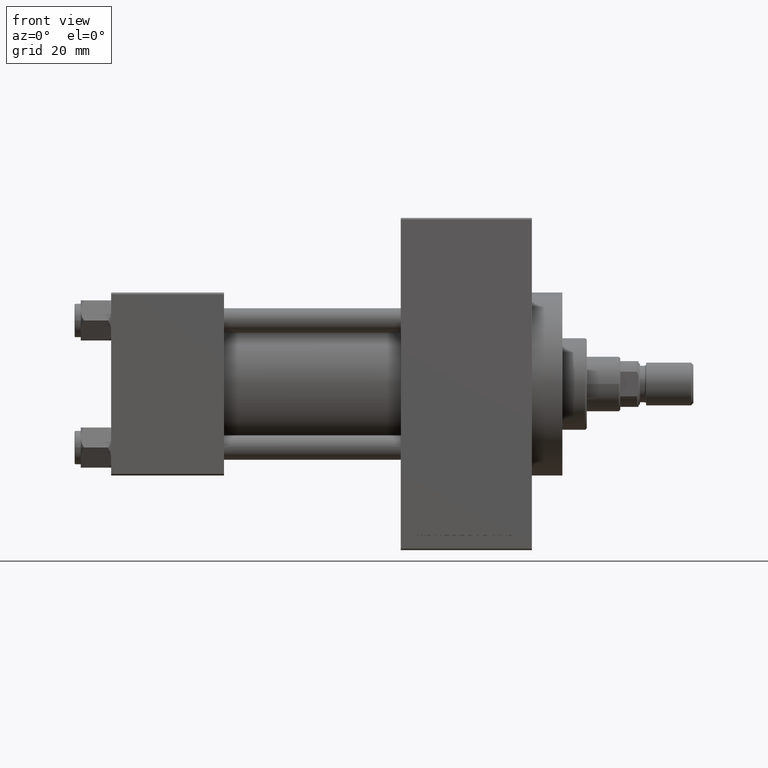
[diagram: clean part render]
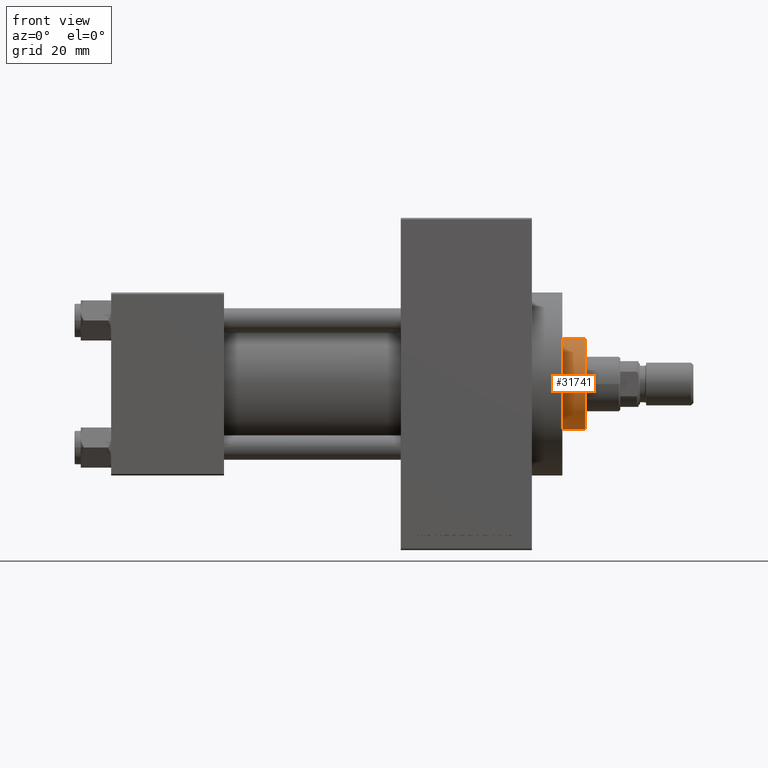
[diagram: same view with one face highlighted and labeled with its STEP entity id]
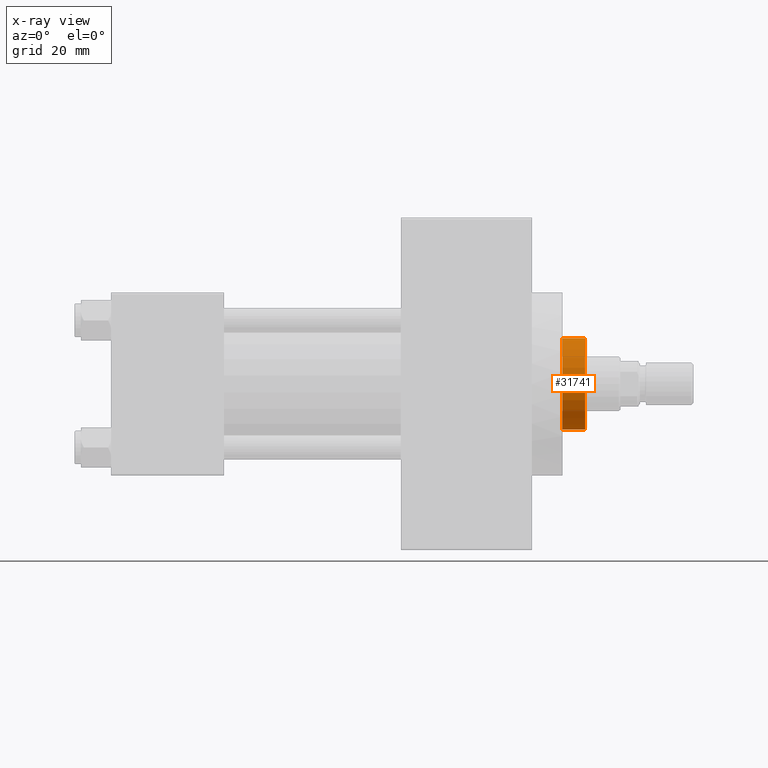
[diagram: x-ray of the same camera — body ghosted, the highlighted face saturated]
A machine part, front view. The second image highlights one B-rep face of the part: STEP entity #31741.
The next image is the same camera in x-ray: the body ghosted, the highlighted face saturated — about 0% of this face is hidden behind the body in this view.
In plain terms, the highlighted cylindrical surface (partial cylindrical patch) has radius 15 mm, axis along (-1, 0, 0).
Its self-contained STEP definition (entity closure, byte-faithful):
#370 = EDGE_CURVE ( 'NONE', #6658, #20190, #23972, .T. ) ;
#2013 = CARTESIAN_POINT ( 'NONE',  ( 0.000000000000000000, 0.000000000000000000, 51.25999999999999801 ) ) ;
#2285 = AXIS2_PLACEMENT_3D ( 'NONE', #36567, #40348, #48138 ) ;
#2746 = ORIENTED_EDGE ( 'NONE', *, *, #32170, .F. ) ;
#5696 = CARTESIAN_POINT ( 'NONE',  ( -15.00000000000000000, 0.000000000000000000, 50.75999999999998380 ) ) ;
#6658 = VERTEX_POINT ( 'NONE', #32422 ) ;
#7587 = DIRECTION ( 'NONE',  ( 0.000000000000000000, 0.000000000000000000, -1.000000000000000000 ) ) ;
#7822 = VECTOR ( 'NONE', #27873, 1000.000000000000000 ) ;
#9663 = CARTESIAN_POINT ( 'NONE',  ( -15.00000000000000000, 0.000000000000000000, 43.25999999999999801 ) ) ;
#11856 = AXIS2_PLACEMENT_3D ( 'NONE', #2013, #13323, #16866 ) ;
#13323 = DIRECTION ( 'NONE',  ( -0.000000000000000000, -0.000000000000000000, -1.000000000000000000 ) ) ;
#14870 = CARTESIAN_POINT ( 'NONE',  ( 0.000000000000000000, 0.000000000000000000, 50.75999999999998380 ) ) ;
#16866 = DIRECTION ( 'NONE',  ( -1.000000000000000000, 0.000000000000000000, 0.000000000000000000 ) ) ;
#16868 = ORIENTED_EDGE ( 'NONE', *, *, #370, .T. ) ;
#20190 = VERTEX_POINT ( 'NONE', #9663 ) ;
#20438 = ORIENTED_EDGE ( 'NONE', *, *, #42402, .T. ) ;
#23088 = VERTEX_POINT ( 'NONE', #44687 ) ;
#23972 = CIRCLE ( 'NONE', #2285, 15.00000000000000000 ) ;
#26431 = DIRECTION ( 'NONE',  ( 1.000000000000000000, 0.000000000000000000, 0.000000000000000000 ) ) ;
#27873 = DIRECTION ( 'NONE',  ( -0.000000000000000000, -0.000000000000000000, -1.000000000000000000 ) ) ;
#30081 = EDGE_CURVE ( 'NONE', #23088, #6658, #43517, .T. ) ;
#30509 = VERTEX_POINT ( 'NONE', #5696 ) ;
#31419 = CARTESIAN_POINT ( 'NONE',  ( 15.00000000000000000, 1.836970198721029589E-15, 51.25999999999999801 ) ) ;
#31741 = ADVANCED_FACE ( 'NONE', ( #47825 ), #40034, .T. ) ;
#32170 = EDGE_CURVE ( 'NONE', #30509, #20190, #46344, .T. ) ;
#32422 = CARTESIAN_POINT ( 'NONE',  ( 15.00000000000000000, 1.836970198721029589E-15, 43.25999999999999801 ) ) ;
#34518 = CARTESIAN_POINT ( 'NONE',  ( -15.00000000000000000, 0.000000000000000000, 51.25999999999999801 ) ) ;
#34965 = AXIS2_PLACEMENT_3D ( 'NONE', #14870, #7587, #26431 ) ;
#36567 = CARTESIAN_POINT ( 'NONE',  ( 0.000000000000000000, 0.000000000000000000, 43.25999999999999801 ) ) ;
#38303 = DIRECTION ( 'NONE',  ( -0.000000000000000000, -0.000000000000000000, -1.000000000000000000 ) ) ;
#40034 = CYLINDRICAL_SURFACE ( 'NONE', #11856, 15.00000000000000000 ) ;
#40348 = DIRECTION ( 'NONE',  ( 0.000000000000000000, 0.000000000000000000, 1.000000000000000000 ) ) ;
#41645 = ORIENTED_EDGE ( 'NONE', *, *, #30081, .T. ) ;
#42402 = EDGE_CURVE ( 'NONE', #30509, #23088, #43864, .T. ) ;
#43517 = LINE ( 'NONE', #31419, #7822 ) ;
#43864 = CIRCLE ( 'NONE', #34965, 15.00000000000000000 ) ;
#44687 = CARTESIAN_POINT ( 'NONE',  ( 15.00000000000000000, 1.836970198721029589E-15, 50.75999999999998380 ) ) ;
#46344 = LINE ( 'NONE', #34518, #46477 ) ;
#46477 = VECTOR ( 'NONE', #38303, 1000.000000000000000 ) ;
#47825 = FACE_OUTER_BOUND ( 'NONE', #49157, .T. ) ;
#48138 = DIRECTION ( 'NONE',  ( 1.000000000000000000, 0.000000000000000000, 0.000000000000000000 ) ) ;
#49157 = EDGE_LOOP ( 'NONE', ( #20438, #41645, #16868, #2746 ) ) ;